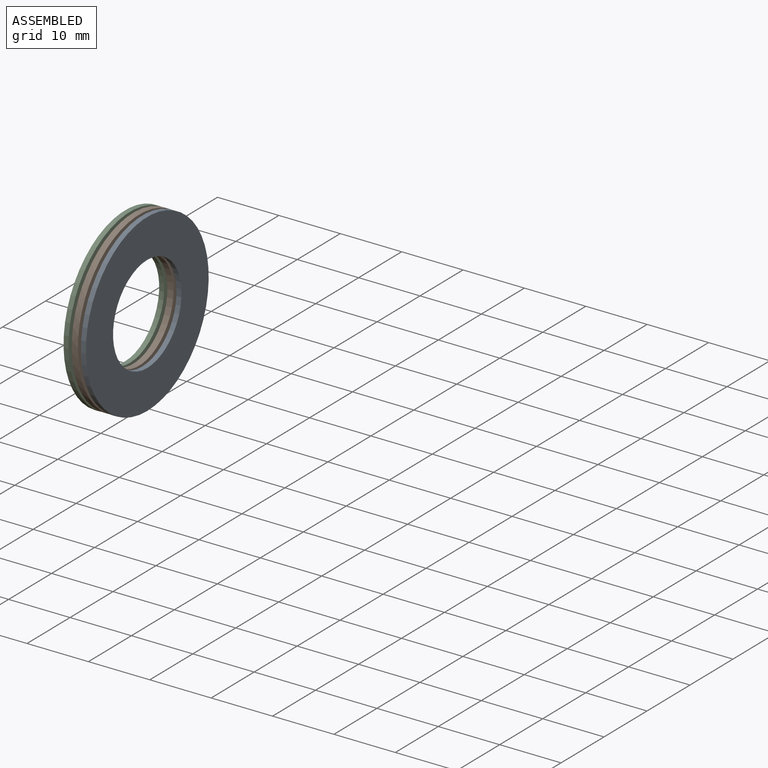
[diagram: assembled view]
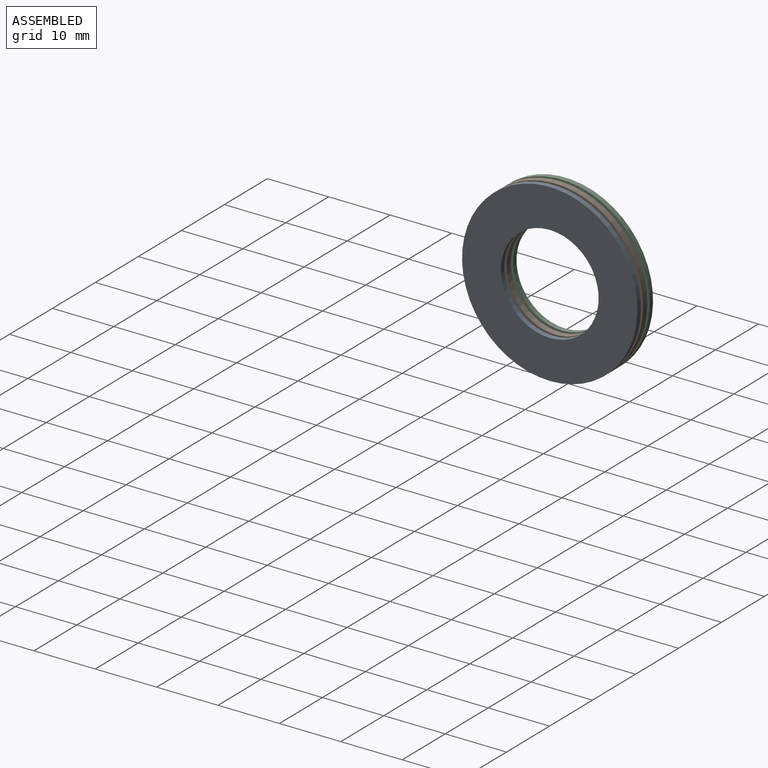
[diagram: assembled view, second angle]
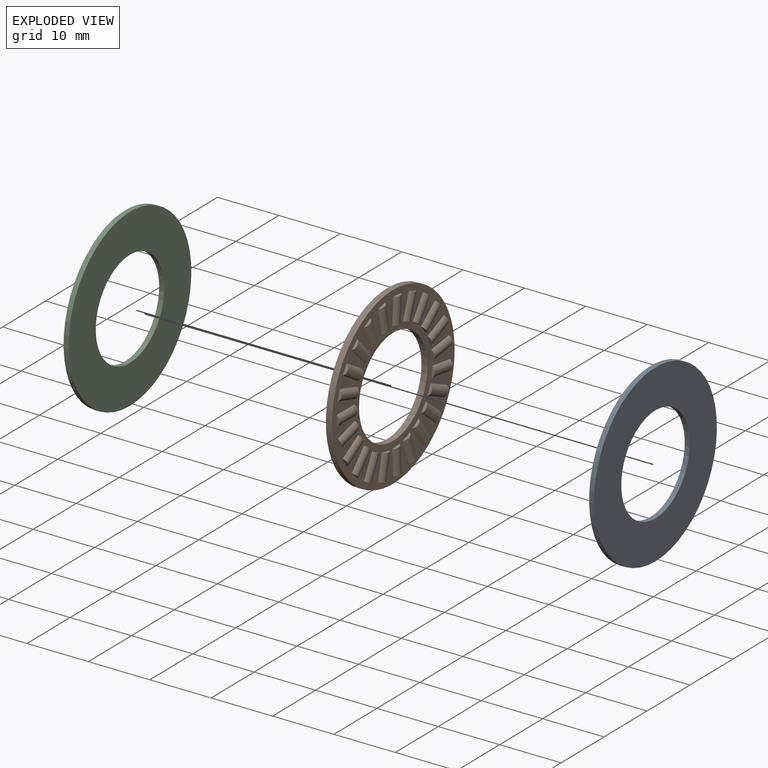
[diagram: exploded view]
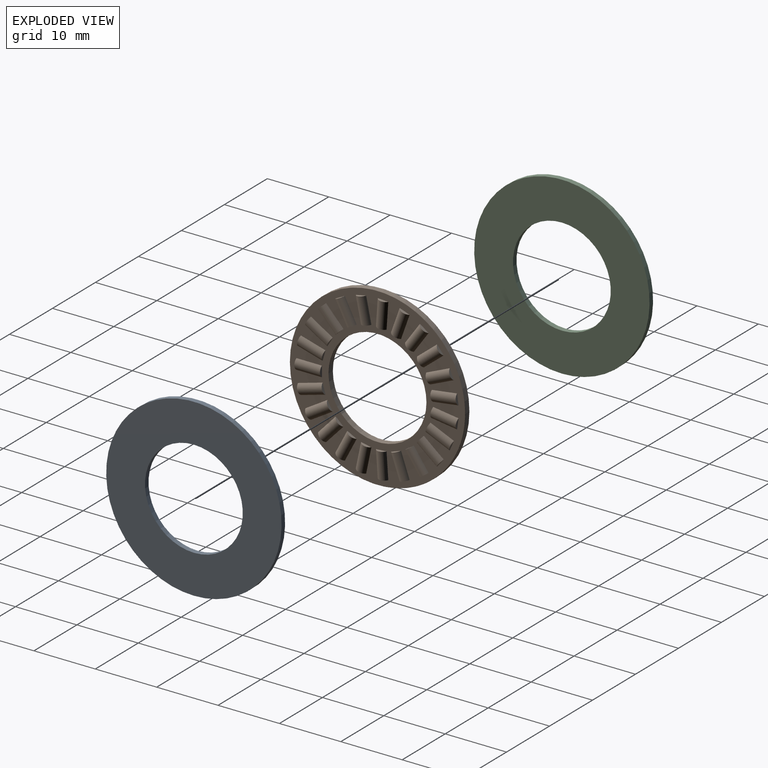
[diagram: exploded view, second angle]
ASSEMBLY  parts=3 mates=2
PART A: 4 faces, bbox 0.8x28.6x28.6 mm
  f0: plane 28.58x28.58mm, normal (1,0,0), area 442.1mm2, adj f2,f3
  f1: plane 28.58x28.58mm, normal (-1,0,0), area 442.1mm2, adj f2,f3
  f2: cylinder r=14.29mm len=28.58mm, axis (-1,0,0), area 73mm2, adj f0,f1
  f3: cylinder r=7.96mm len=15.93mm, axis (-1,0,0), area 40.7mm2, adj f0,f1
PART B: 146 faces, bbox 30.9x2x30.9 mm
  f0: plane 1.65x0.5mm, normal (-0.27,0,0.96), area 0.6mm2, adj f1,f69
  f1: cylinder r=0.99mm len=4.48mm, axis (-0.27,0,0.96), area 8.7mm2, adj f0,f2,f69
  f2: plane 1.65x0.5mm, normal (0.27,0,-0.96), area 0.6mm2, adj f1,f69
  f3: plane 1.47x0.89mm, normal (-0.52,0,0.85), area 0.6mm2, adj f4,f69
  f4: cylinder r=0.99mm len=4.45mm, axis (-0.52,0,0.85), area 8.7mm2, adj f3,f5,f69
  f5: plane 1.47x0.89mm, normal (0.52,0,-0.85), area 0.6mm2, adj f4,f69
  f6: plane 1.26x1.17mm, normal (-0.73,0,0.68), area 0.6mm2, adj f7,f69
  f7: cylinder r=0.99mm len=4.22mm, axis (-0.73,0,0.68), area 8.7mm2, adj f6,f8,f69
  f8: plane 1.26x1.17mm, normal (0.73,0,-0.68), area 0.6mm2, adj f7,f69
  f9: plane 1.53x0.79mm, normal (-0.89,0,0.46), area 0.6mm2, adj f10,f69
  f10: cylinder r=0.99mm len=4.49mm, axis (-0.89,0,0.46), area 8.7mm2, adj f9,f11,f69
  f11: plane 1.53x0.79mm, normal (0.89,0,-0.46), area 0.6mm2, adj f10,f69
  f12: plane 1.68x0.5mm, normal (-0.98,0,0.2), area 0.6mm2, adj f13,f69
  f13: cylinder r=0.99mm len=4.43mm, axis (-0.98,0,0.2), area 8.7mm2, adj f12,f14,f69
  f14: plane 1.68x0.5mm, normal (0.98,0,-0.2), area 0.6mm2, adj f13,f69
  f15: plane 1.71x0.5mm, normal (-1,0,-0.07), area 0.6mm2, adj f16,f69
  f16: cylinder r=0.99mm len=4.27mm, axis (-1,0,-0.07), area 8.7mm2, adj f15,f17,f69
  f17: plane 1.71x0.5mm, normal (1,0,0.07), area 0.6mm2, adj f16,f69
  f18: plane 1.62x0.58mm, normal (-0.94,0,-0.33), area 0.6mm2, adj f19,f69
  f19: cylinder r=0.99mm len=4.5mm, axis (-0.94,0,-0.33), area 8.7mm2, adj f18,f20,f69
  f20: plane 1.62x0.58mm, normal (0.94,0,0.33), area 0.6mm2, adj f19,f69
  f21: plane 1.4x0.99mm, normal (-0.82,0,-0.58), area 0.6mm2, adj f22,f69
  f22: cylinder r=0.99mm len=4.4mm, axis (-0.82,0,-0.58), area 8.7mm2, adj f21,f23,f69
  f23: plane 1.4x0.99mm, normal (0.82,0,0.58), area 0.6mm2, adj f22,f69
  f24: plane 1.33x1.08mm, normal (-0.63,0,-0.78), area 0.6mm2, adj f25,f69
  f25: cylinder r=0.99mm len=4.32mm, axis (-0.63,0,-0.78), area 8.7mm2, adj f24,f26,f69
  f26: plane 1.33x1.08mm, normal (0.63,0,0.78), area 0.6mm2, adj f25,f69
  f27: plane 1.58x0.68mm, normal (-0.4,0,-0.92), area 0.6mm2, adj f28,f69
  f28: cylinder r=0.99mm len=4.51mm, axis (-0.4,0,-0.92), area 8.7mm2, adj f27,f29,f69
  f29: plane 1.58x0.68mm, normal (0.4,0,0.92), area 0.6mm2, adj f28,f69
  f30: plane 1.7x0.5mm, normal (-0.14,0,-0.99), area 0.6mm2, adj f31,f69
  f31: cylinder r=0.99mm len=4.36mm, axis (-0.14,0,-0.99), area 8.7mm2, adj f30,f32,f69
  f32: plane 1.7x0.5mm, normal (0.14,0,0.99), area 0.6mm2, adj f31,f69
  f33: plane 1.7x0.5mm, normal (0.14,0,-0.99), area 0.6mm2, adj f34,f69
  f34: cylinder r=0.99mm len=4.36mm, axis (0.14,0,-0.99), area 8.7mm2, adj f33,f35,f69
  f35: plane 1.7x0.5mm, normal (-0.14,0,0.99), area 0.6mm2, adj f34,f69
  f36: plane 1.58x0.68mm, normal (0.4,0,-0.92), area 0.6mm2, adj f37,f69
  f37: cylinder r=0.99mm len=4.51mm, axis (0.4,0,-0.92), area 8.7mm2, adj f36,f38,f69
  f38: plane 1.58x0.68mm, normal (-0.4,0,0.92), area 0.6mm2, adj f37,f69
  f39: plane 1.33x1.08mm, normal (0.63,0,-0.78), area 0.6mm2, adj f40,f69
  f40: cylinder r=0.99mm len=4.32mm, axis (0.63,0,-0.78), area 8.7mm2, adj f39,f41,f69
  f41: plane 1.33x1.08mm, normal (-0.63,0,0.78), area 0.6mm2, adj f40,f69
  f42: plane 1.4x0.99mm, normal (0.82,0,-0.58), area 0.6mm2, adj f43,f69
  f43: cylinder r=0.99mm len=4.4mm, axis (0.82,0,-0.58), area 8.7mm2, adj f42,f44,f69
  f44: plane 1.4x0.99mm, normal (-0.82,0,0.58), area 0.6mm2, adj f43,f69
  f45: plane 1.62x0.58mm, normal (0.94,0,-0.33), area 0.6mm2, adj f46,f69
  f46: cylinder r=0.99mm len=4.5mm, axis (0.94,0,-0.33), area 8.7mm2, adj f45,f47,f69
  f47: plane 1.62x0.58mm, normal (-0.94,0,0.33), area 0.6mm2, adj f46,f69
  f48: plane 1.71x0.5mm, normal (1,0,-0.07), area 0.6mm2, adj f49,f69
  f49: cylinder r=0.99mm len=4.27mm, axis (1,0,-0.07), area 8.7mm2, adj f48,f50,f69
  f50: plane 1.71x0.5mm, normal (-1,0,0.07), area 0.6mm2, adj f49,f69
  f51: plane 1.68x0.5mm, normal (0.98,0,0.2), area 0.6mm2, adj f52,f69
  f52: cylinder r=0.99mm len=4.43mm, axis (0.98,0,0.2), area 8.7mm2, adj f51,f53,f69
  f53: plane 1.68x0.5mm, normal (-0.98,0,-0.2), area 0.6mm2, adj f52,f69
  f54: plane 1.53x0.79mm, normal (0.89,0,0.46), area 0.6mm2, adj f55,f69
  f55: cylinder r=0.99mm len=4.49mm, axis (0.89,0,0.46), area 8.7mm2, adj f54,f56,f69
  f56: plane 1.53x0.79mm, normal (-0.89,0,-0.46), area 0.6mm2, adj f55,f69
  f57: plane 1.26x1.17mm, normal (0.73,0,0.68), area 0.6mm2, adj f58,f69
  f58: cylinder r=0.99mm len=4.22mm, axis (0.73,0,0.68), area 8.7mm2, adj f57,f59,f69
  f59: plane 1.26x1.17mm, normal (-0.73,0,-0.68), area 0.6mm2, adj f58,f69
  f60: plane 1.47x0.89mm, normal (0.52,0,0.85), area 0.6mm2, adj f61,f69
  f61: cylinder r=0.99mm len=4.45mm, axis (0.52,0,0.85), area 8.7mm2, adj f60,f62,f69
  f62: plane 1.47x0.89mm, normal (-0.52,0,-0.85), area 0.6mm2, adj f61,f69
  f63: plane 1.65x0.5mm, normal (0.27,0,0.96), area 0.6mm2, adj f64,f69
  f64: cylinder r=0.99mm len=4.48mm, axis (0.27,0,0.96), area 8.7mm2, adj f63,f65,f69
  f65: plane 1.65x0.5mm, normal (-0.27,0,-0.96), area 0.6mm2, adj f64,f69
  f66: plane 1.72x0.5mm, normal (0,0,1), area 0.6mm2, adj f67,f69
  f67: cylinder r=0.99mm len=4.17mm, axis (0,0,1), area 8.7mm2, adj f66,f68,f69
  f68: plane 1.72x0.5mm, normal (0,0,-1), area 0.6mm2, adj f67,f69
  f69: plane 28.54x28.54mm, normal (0,-1,0), area 274.6mm2, adj f0,f1,f2,f3,f4,f5,f6,f7
  f70: plane 28.54x28.54mm, normal (0,1,0), area 274.6mm2, adj f74,f76,f77,f78,f79,f80,f81,f82
  f71: cylinder r=14.29mm len=28.58mm, axis (0,-1,0), area 85.5mm2, adj f75,f76
  f72: cylinder r=7.96mm len=15.93mm, axis (0,-1,0), area 47.7mm2, adj f73,f74
  f73: torus R=7.98mm, axis (0,1,0), area 1.6mm2, adj f69,f72
  f74: torus R=7.98mm, axis (0,-1,0), area 1.6mm2, adj f70,f72
  f75: torus R=14.27mm, axis (0,1,0), area 2.8mm2, adj f69,f71
  f76: torus R=14.27mm, axis (0,-1,0), area 2.8mm2, adj f70,f71
  f77: plane 1.72x0.5mm, normal (0,0,-1), area 0.6mm2, adj f70,f78
  f78: cylinder r=0.99mm len=4.17mm, axis (0,0,1), area 8.7mm2, adj f70,f77,f79
  f79: plane 1.72x0.5mm, normal (0,0,1), area 0.6mm2, adj f70,f78
  f80: plane 1.65x0.5mm, normal (-0.27,0,-0.96), area 0.6mm2, adj f70,f81
  f81: cylinder r=0.99mm len=4.48mm, axis (0.27,0,0.96), area 8.7mm2, adj f70,f80,f82
  f82: plane 1.65x0.5mm, normal (0.27,0,0.96), area 0.6mm2, adj f70,f81
  f83: plane 1.47x0.89mm, normal (-0.52,0,-0.85), area 0.6mm2, adj f70,f84
  f84: cylinder r=0.99mm len=4.45mm, axis (0.52,0,0.85), area 8.7mm2, adj f70,f83,f85
  f85: plane 1.47x0.89mm, normal (0.52,0,0.85), area 0.6mm2, adj f70,f84
  f86: plane 1.26x1.17mm, normal (-0.73,0,-0.68), area 0.6mm2, adj f70,f87
  f87: cylinder r=0.99mm len=4.22mm, axis (0.73,0,0.68), area 8.7mm2, adj f70,f86,f88
  f88: plane 1.26x1.17mm, normal (0.73,0,0.68), area 0.6mm2, adj f70,f87
  f89: plane 1.53x0.79mm, normal (-0.89,0,-0.46), area 0.6mm2, adj f70,f90
  f90: cylinder r=0.99mm len=4.49mm, axis (0.89,0,0.46), area 8.7mm2, adj f70,f89,f91
  f91: plane 1.53x0.79mm, normal (0.89,0,0.46), area 0.6mm2, adj f70,f90
  f92: plane 1.68x0.5mm, normal (-0.98,0,-0.2), area 0.6mm2, adj f70,f93
  f93: cylinder r=0.99mm len=4.43mm, axis (0.98,0,0.2), area 8.7mm2, adj f70,f92,f94
  f94: plane 1.68x0.5mm, normal (0.98,0,0.2), area 0.6mm2, adj f70,f93
  f95: plane 1.71x0.5mm, normal (-1,0,0.07), area 0.6mm2, adj f70,f96
  f96: cylinder r=0.99mm len=4.27mm, axis (1,0,-0.07), area 8.7mm2, adj f70,f95,f97
  f97: plane 1.71x0.5mm, normal (1,0,-0.07), area 0.6mm2, adj f70,f96
  f98: plane 1.62x0.58mm, normal (-0.94,0,0.33), area 0.6mm2, adj f70,f99
  f99: cylinder r=0.99mm len=4.5mm, axis (0.94,0,-0.33), area 8.7mm2, adj f70,f98,f100
  f100: plane 1.62x0.58mm, normal (0.94,0,-0.33), area 0.6mm2, adj f70,f99
  f101: plane 1.4x0.99mm, normal (-0.82,0,0.58), area 0.6mm2, adj f70,f102
  f102: cylinder r=0.99mm len=4.4mm, axis (0.82,0,-0.58), area 8.7mm2, adj f70,f101,f103
  f103: plane 1.4x0.99mm, normal (0.82,0,-0.58), area 0.6mm2, adj f70,f102
  f104: plane 1.33x1.08mm, normal (-0.63,0,0.78), area 0.6mm2, adj f70,f105
  f105: cylinder r=0.99mm len=4.32mm, axis (0.63,0,-0.78), area 8.7mm2, adj f70,f104,f106
  f106: plane 1.33x1.08mm, normal (0.63,0,-0.78), area 0.6mm2, adj f70,f105
  f107: plane 1.58x0.68mm, normal (-0.4,0,0.92), area 0.6mm2, adj f70,f108
  f108: cylinder r=0.99mm len=4.51mm, axis (0.4,0,-0.92), area 8.7mm2, adj f70,f107,f109
  f109: plane 1.58x0.68mm, normal (0.4,0,-0.92), area 0.6mm2, adj f70,f108
  f110: plane 1.7x0.5mm, normal (-0.14,0,0.99), area 0.6mm2, adj f70,f111
  f111: cylinder r=0.99mm len=4.36mm, axis (0.14,0,-0.99), area 8.7mm2, adj f70,f110,f112
  f112: plane 1.7x0.5mm, normal (0.14,0,-0.99), area 0.6mm2, adj f70,f111
  f113: plane 1.7x0.5mm, normal (0.14,0,0.99), area 0.6mm2, adj f70,f114
  f114: cylinder r=0.99mm len=4.36mm, axis (-0.14,0,-0.99), area 8.7mm2, adj f70,f113,f115
  f115: plane 1.7x0.5mm, normal (-0.14,0,-0.99), area 0.6mm2, adj f70,f114
  f116: plane 1.58x0.68mm, normal (0.4,0,0.92), area 0.6mm2, adj f70,f117
  f117: cylinder r=0.99mm len=4.51mm, axis (-0.4,0,-0.92), area 8.7mm2, adj f70,f116,f118
  f118: plane 1.58x0.68mm, normal (-0.4,0,-0.92), area 0.6mm2, adj f70,f117
  f119: plane 1.33x1.08mm, normal (0.63,0,0.78), area 0.6mm2, adj f70,f120
  f120: cylinder r=0.99mm len=4.32mm, axis (-0.63,0,-0.78), area 8.7mm2, adj f70,f119,f121
  f121: plane 1.33x1.08mm, normal (-0.63,0,-0.78), area 0.6mm2, adj f70,f120
  f122: plane 1.4x0.99mm, normal (0.82,0,0.58), area 0.6mm2, adj f70,f123
  f123: cylinder r=0.99mm len=4.4mm, axis (-0.82,0,-0.58), area 8.7mm2, adj f70,f122,f124
  f124: plane 1.4x0.99mm, normal (-0.82,0,-0.58), area 0.6mm2, adj f70,f123
  f125: plane 1.62x0.58mm, normal (0.94,0,0.33), area 0.6mm2, adj f70,f126
  f126: cylinder r=0.99mm len=4.5mm, axis (-0.94,0,-0.33), area 8.7mm2, adj f70,f125,f127
  f127: plane 1.62x0.58mm, normal (-0.94,0,-0.33), area 0.6mm2, adj f70,f126
  f128: plane 1.71x0.5mm, normal (1,0,0.07), area 0.6mm2, adj f70,f129
  f129: cylinder r=0.99mm len=4.27mm, axis (-1,0,-0.07), area 8.7mm2, adj f70,f128,f130
  f130: plane 1.71x0.5mm, normal (-1,0,-0.07), area 0.6mm2, adj f70,f129
  f131: plane 1.68x0.5mm, normal (0.98,0,-0.2), area 0.6mm2, adj f70,f132
  f132: cylinder r=0.99mm len=4.43mm, axis (-0.98,0,0.2), area 8.7mm2, adj f70,f131,f133
  f133: plane 1.68x0.5mm, normal (-0.98,0,0.2), area 0.6mm2, adj f70,f132
  f134: plane 1.53x0.79mm, normal (0.89,0,-0.46), area 0.6mm2, adj f70,f135
  f135: cylinder r=0.99mm len=4.49mm, axis (-0.89,0,0.46), area 8.7mm2, adj f70,f134,f136
  f136: plane 1.53x0.79mm, normal (-0.89,0,0.46), area 0.6mm2, adj f70,f135
  f137: plane 1.26x1.17mm, normal (0.73,0,-0.68), area 0.6mm2, adj f70,f138
  f138: cylinder r=0.99mm len=4.22mm, axis (-0.73,0,0.68), area 8.7mm2, adj f70,f137,f139
  f139: plane 1.26x1.17mm, normal (-0.73,0,0.68), area 0.6mm2, adj f70,f138
  f140: plane 1.47x0.89mm, normal (0.52,0,-0.85), area 0.6mm2, adj f70,f141
  f141: cylinder r=0.99mm len=4.45mm, axis (-0.52,0,0.85), area 8.7mm2, adj f70,f140,f142
  f142: plane 1.47x0.89mm, normal (-0.52,0,0.85), area 0.6mm2, adj f70,f141
  f143: plane 1.65x0.5mm, normal (0.27,0,-0.96), area 0.6mm2, adj f70,f144
  f144: cylinder r=0.99mm len=4.48mm, axis (-0.27,0,0.96), area 8.7mm2, adj f70,f143,f145
  f145: plane 1.65x0.5mm, normal (-0.27,0,0.96), area 0.6mm2, adj f70,f144
PART C: same geometry as A
PLACE A t=(0.97,-31.72,-15.74)mm fixed
PLACE B rot(axis=(0.58,-0.58,0.58),120deg) t=(-0.03,-31.72,-15.74)mm
PLACE C t=(-1.85,-31.72,-15.74)mm
MATE revolute A.f2 <-> B.f74  axis (-1,0,0) through (0.97,-31.72,-15.74)mm
MATE fastened B.f73 <-> C.f2  axis (-1,0,0) through (-0.53,-31.72,-15.74)mm
